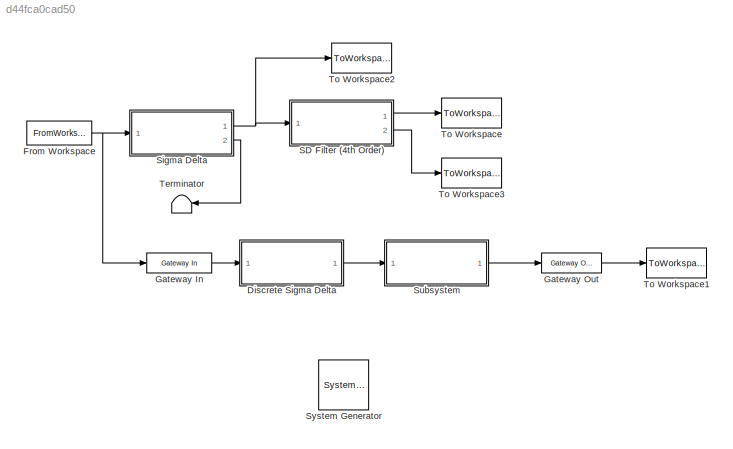
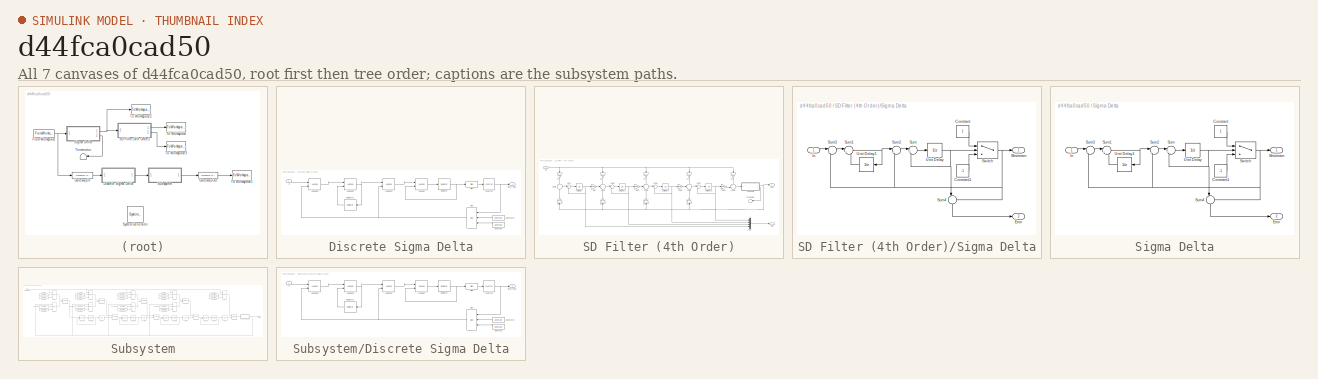
[diagram: thumbnail index - all 7 canvases of the model, root first then tree order]
MODEL slx_d44fca0cad50
KIND model
CONFIG AbsTol = auto
CONFIG EnableMultiTasking = off
CONFIG FixedStep = auto
CONFIG MaxStep = auto
CONFIG MinStep = auto
CONFIG RelTol = 1e-3
CONFIG SampleTimeConstraint = Unconstrained
CONFIG Solver = VariableStepAuto
CONFIG SolverName = VariableStepAuto
CONFIG StartTime = 0.0
CONFIG StopTime = t_stop
BLOCK [Reference]  System Generator  REF=xbsIndex_r4/ System Generator
  AttributesFormatString = System\nGenerator
  Ports = []
  SourceBlock = xbsIndex_r4/ System Generator
  SourceType = Xilinx System Generator Block
  Tag = genX
  UserDataPersistent = on
BLOCK [SubSystem] Discrete Sigma Delta
  Ports = [1, 1]
  RequestExecContextInheritance = off
  Variant = off
BLOCK [Reference] Discrete Sigma Delta/AddSub  REF=xbsIndex_r4/AddSub
  Ports = [2, 1]
  SourceBlock = xbsIndex_r4/AddSub
  SourceType = Xilinx Adder/Subtracter Block
BLOCK [Reference] Discrete Sigma Delta/AddSub1  REF=xbsIndex_r4/AddSub
  Ports = [2, 1]
  SourceBlock = xbsIndex_r4/AddSub
  SourceType = Xilinx Adder/Subtracter Block
BLOCK [Reference] Discrete Sigma Delta/AddSub2  REF=xbsIndex_r4/AddSub
  Ports = [2, 1]
  SourceBlock = xbsIndex_r4/AddSub
  SourceType = Xilinx Adder/Subtracter Block
BLOCK [Reference] Discrete Sigma Delta/AddSub3  REF=xbsIndex_r4/AddSub
  Ports = [2, 1]
  SourceBlock = xbsIndex_r4/AddSub
  SourceType = Xilinx Adder/Subtracter Block
BLOCK [Reference] Discrete Sigma Delta/Constant  REF=xbsIndex_r4/Constant
  Ports = [0, 1]
  SourceBlock = xbsIndex_r4/Constant
  SourceType = Xilinx Constant Block Block
BLOCK [Reference] Discrete Sigma Delta/Constant1  REF=xbsIndex_r4/Constant
  Ports = [0, 1]
  SourceBlock = xbsIndex_r4/Constant
  SourceType = Xilinx Constant Block Block
BLOCK [Inport] Discrete Sigma Delta/In
  IconDisplay = Port number
BLOCK [Reference] Discrete Sigma Delta/Inverter  REF=xbsIndex_r4/Inverter
  Ports = [1, 1]
  SourceBlock = xbsIndex_r4/Inverter
  SourceType = Xilinx Inverter Block
BLOCK [Reference] Discrete Sigma Delta/Mux  REF=xbsIndex_r4/Mux
  Ports = [3, 1]
  SourceBlock = xbsIndex_r4/Mux
  SourceType = Xilinx Bus Multiplexer Block
BLOCK [Reference] Discrete Sigma Delta/Register  REF=xbsIndex_r4/Register
  Ports = [1, 1]
  SourceBlock = xbsIndex_r4/Register
  SourceType = Xilinx Register Block
BLOCK [Reference] Discrete Sigma Delta/Register1  REF=xbsIndex_r4/Register
  Ports = [1, 1]
  SourceBlock = xbsIndex_r4/Register
  SourceType = Xilinx Register Block
BLOCK [Reference] Discrete Sigma Delta/Slice  REF=xbsIndex_r4/Slice
  Ports = [1, 1]
  SourceBlock = xbsIndex_r4/Slice
  SourceType = Xilinx Bit Slice Extractor Block
BLOCK [Outport] Discrete Sigma Delta/bitstream
  IconDisplay = Port number
BLOCK [FromWorkspace] From Workspace
  OutDataTypeStr = double
  SampleTime = ts
  VariableName = [t;in]'
  ZeroCross = on
BLOCK [Reference] Gateway In  REF=xbsIndex_r4/Gateway In
  Ports = [1, 1]
  SourceBlock = xbsIndex_r4/Gateway In
  SourceType = Xilinx Gateway In Block
BLOCK [Reference] Gateway Out  REF=xbsIndex_r4/Gateway Out
  Ports = [1, 1]
  SourceBlock = xbsIndex_r4/Gateway Out
  SourceType = Xilinx Gateway Out Block
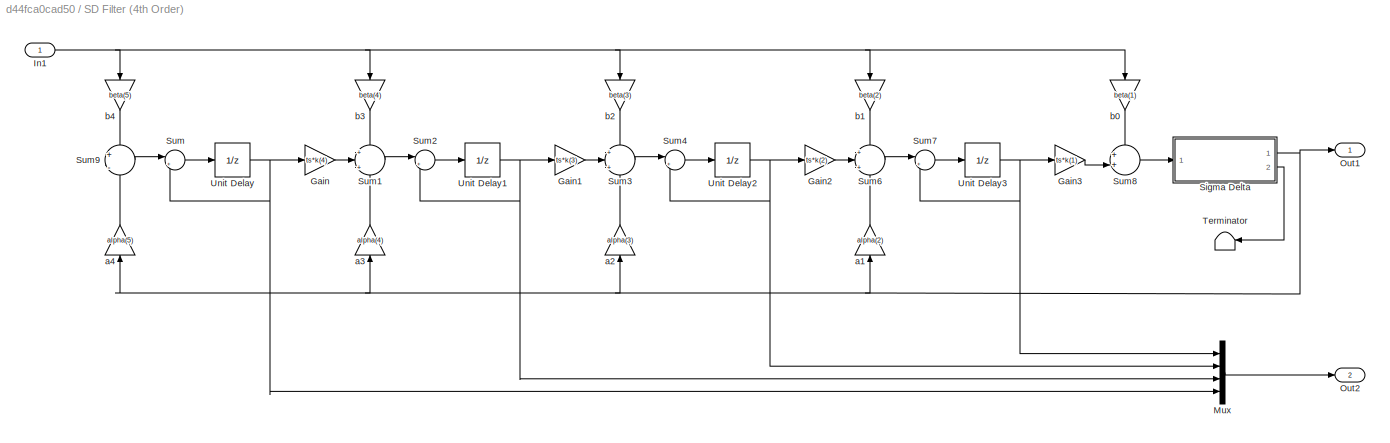
BLOCK [SubSystem] SD Filter (4th Order)
  Ports = [1, 2]
  RequestExecContextInheritance = off
  Variant = off
BLOCK [Gain] SD Filter (4th Order)/Gain
  Gain = ts*k(4)
  OutDataTypeStr = Inherit: Inherit via internal rule
  ParamDataTypeStr = Inherit: Inherit via internal rule
  RndMeth = Round
  SaturateOnIntegerOverflow = off
BLOCK [Gain] SD Filter (4th Order)/Gain1
  Gain = ts*k(3)
  OutDataTypeStr = Inherit: Inherit via internal rule
  ParamDataTypeStr = Inherit: Inherit via internal rule
  RndMeth = Round
  SaturateOnIntegerOverflow = off
BLOCK [Gain] SD Filter (4th Order)/Gain2
  Gain = ts*k(2)
  OutDataTypeStr = Inherit: Inherit via internal rule
  ParamDataTypeStr = Inherit: Inherit via internal rule
  RndMeth = Round
  SaturateOnIntegerOverflow = off
BLOCK [Gain] SD Filter (4th Order)/Gain3
  Gain = ts*k(1)
  OutDataTypeStr = Inherit: Inherit via internal rule
  ParamDataTypeStr = Inherit: Inherit via internal rule
  RndMeth = Round
  SaturateOnIntegerOverflow = off
BLOCK [Inport] SD Filter (4th Order)/In1
  IconDisplay = Port number
BLOCK [Mux] SD Filter (4th Order)/Mux
  DisplayOption = bar
  Ports = [4, 1]
BLOCK [Outport] SD Filter (4th Order)/Out1
  IconDisplay = Port number
BLOCK [Outport] SD Filter (4th Order)/Out2
  IconDisplay = Port number
  Port = 2
BLOCK [SubSystem] SD Filter (4th Order)/Sigma Delta
  Ports = [1, 2]
  RequestExecContextInheritance = off
  Variant = off
BLOCK [Outport] SD Filter (4th Order)/Sigma Delta/Bitstream
  IconDisplay = Port number
BLOCK [Constant] SD Filter (4th Order)/Sigma Delta/Constant
BLOCK [Constant] SD Filter (4th Order)/Sigma Delta/Constant1
  Value = -1
BLOCK [Outport] SD Filter (4th Order)/Sigma Delta/Error
  IconDisplay = Port number
  Port = 2
BLOCK [Inport] SD Filter (4th Order)/Sigma Delta/In
  IconDisplay = Port number
BLOCK [Sum] SD Filter (4th Order)/Sigma Delta/Sum
  IconShape = round
  InputSameDT = off
  Inputs = |++
  OutDataTypeStr = Inherit: Inherit via internal rule
  Ports = [2, 1]
  SaturateOnIntegerOverflow = off
BLOCK [Sum] SD Filter (4th Order)/Sigma Delta/Sum1
  IconShape = round
  InputSameDT = off
  Inputs = |++
  OutDataTypeStr = Inherit: Inherit via internal rule
  Ports = [2, 1]
  SaturateOnIntegerOverflow = off
BLOCK [Sum] SD Filter (4th Order)/Sigma Delta/Sum2
  IconShape = round
  InputSameDT = off
  Inputs = |+-
  OutDataTypeStr = Inherit: Inherit via internal rule
  Ports = [2, 1]
  SaturateOnIntegerOverflow = off
BLOCK [Sum] SD Filter (4th Order)/Sigma Delta/Sum3
  IconShape = round
  InputSameDT = off
  Inputs = |+-
  OutDataTypeStr = Inherit: Inherit via internal rule
  Ports = [2, 1]
  SaturateOnIntegerOverflow = off
BLOCK [Sum] SD Filter (4th Order)/Sigma Delta/Sum4
  IconShape = round
  InputSameDT = off
  Inputs = |-+
  OutDataTypeStr = Inherit: Inherit via internal rule
  Ports = [2, 1]
  SaturateOnIntegerOverflow = off
BLOCK [Switch] SD Filter (4th Order)/Sigma Delta/Switch
  InputSameDT = off
  SaturateOnIntegerOverflow = off
BLOCK [UnitDelay] SD Filter (4th Order)/Sigma Delta/Unit Delay
  InputProcessing = Elements as channels (sample based)
  SampleTime = ts
BLOCK [UnitDelay] SD Filter (4th Order)/Sigma Delta/Unit Delay1
  InputProcessing = Elements as channels (sample based)
  SampleTime = ts
BLOCK [Sum] SD Filter (4th Order)/Sum
  IconShape = round
  InputSameDT = off
  Inputs = |++
  OutDataTypeStr = Inherit: Inherit via internal rule
  Ports = [2, 1]
  SaturateOnIntegerOverflow = off
BLOCK [Sum] SD Filter (4th Order)/Sum1
  IconShape = round
  InputSameDT = off
  Inputs = +|+|-
  OutDataTypeStr = Inherit: Inherit via internal rule
  Ports = [3, 1]
  SaturateOnIntegerOverflow = off
BLOCK [Sum] SD Filter (4th Order)/Sum2
  IconShape = round
  InputSameDT = off
  Inputs = |++
  OutDataTypeStr = Inherit: Inherit via internal rule
  Ports = [2, 1]
  SaturateOnIntegerOverflow = off
BLOCK [Sum] SD Filter (4th Order)/Sum3
  IconShape = round
  InputSameDT = off
  Inputs = +|+|-
  OutDataTypeStr = Inherit: Inherit via internal rule
  Ports = [3, 1]
  SaturateOnIntegerOverflow = off
BLOCK [Sum] SD Filter (4th Order)/Sum4
  IconShape = round
  InputSameDT = off
  Inputs = |++
  OutDataTypeStr = Inherit: Inherit via internal rule
  Ports = [2, 1]
  SaturateOnIntegerOverflow = off
BLOCK [Sum] SD Filter (4th Order)/Sum6
  IconShape = round
  InputSameDT = off
  Inputs = +|+|-
  OutDataTypeStr = Inherit: Inherit via internal rule
  Ports = [3, 1]
  SaturateOnIntegerOverflow = off
BLOCK [Sum] SD Filter (4th Order)/Sum7
  IconShape = round
  InputSameDT = off
  Inputs = |++
  OutDataTypeStr = Inherit: Inherit via internal rule
  Ports = [2, 1]
  SaturateOnIntegerOverflow = off
BLOCK [Sum] SD Filter (4th Order)/Sum8
  IconShape = round
  InputSameDT = off
  Inputs = ++|
  OutDataTypeStr = Inherit: Inherit via internal rule
  Ports = [2, 1]
  SaturateOnIntegerOverflow = off
BLOCK [Sum] SD Filter (4th Order)/Sum9
  IconShape = round
  InputSameDT = off
  Inputs = +|-
  OutDataTypeStr = Inherit: Inherit via internal rule
  Ports = [2, 1]
  SaturateOnIntegerOverflow = off
BLOCK [Terminator] SD Filter (4th Order)/Terminator
BLOCK [UnitDelay] SD Filter (4th Order)/Unit Delay
  InputProcessing = Elements as channels (sample based)
  SampleTime = -1
BLOCK [UnitDelay] SD Filter (4th Order)/Unit Delay1
  InputProcessing = Elements as channels (sample based)
  SampleTime = -1
BLOCK [UnitDelay] SD Filter (4th Order)/Unit Delay2
  InputProcessing = Elements as channels (sample based)
  SampleTime = -1
BLOCK [UnitDelay] SD Filter (4th Order)/Unit Delay3
  InputProcessing = Elements as channels (sample based)
  SampleTime = -1
BLOCK [Gain] SD Filter (4th Order)/a1
  Gain = alpha(2)
  OutDataTypeStr = Inherit: Inherit via internal rule
  ParamDataTypeStr = Inherit: Inherit via internal rule
  SaturateOnIntegerOverflow = off
BLOCK [Gain] SD Filter (4th Order)/a2
  Gain = alpha(3)
  OutDataTypeStr = Inherit: Inherit via internal rule
  ParamDataTypeStr = Inherit: Inherit via internal rule
  SaturateOnIntegerOverflow = off
BLOCK [Gain] SD Filter (4th Order)/a3
  Gain = alpha(4)
  OutDataTypeStr = Inherit: Inherit via internal rule
  ParamDataTypeStr = Inherit: Inherit via internal rule
  SaturateOnIntegerOverflow = off
BLOCK [Gain] SD Filter (4th Order)/a4
  Gain = alpha(5)
  OutDataTypeStr = Inherit: Inherit via internal rule
  ParamDataTypeStr = Inherit: Inherit via internal rule
  SaturateOnIntegerOverflow = off
BLOCK [Gain] SD Filter (4th Order)/b0
  Gain = beta(1)
  OutDataTypeStr = Inherit: Inherit via internal rule
  ParamDataTypeStr = Inherit: Inherit via internal rule
  SaturateOnIntegerOverflow = off
BLOCK [Gain] SD Filter (4th Order)/b1
  Gain = beta(2)
  OutDataTypeStr = Inherit: Inherit via internal rule
  ParamDataTypeStr = Inherit: Inherit via internal rule
  SaturateOnIntegerOverflow = off
BLOCK [Gain] SD Filter (4th Order)/b2
  Gain = beta(3)
  OutDataTypeStr = Inherit: Inherit via internal rule
  ParamDataTypeStr = Inherit: Inherit via internal rule
  SaturateOnIntegerOverflow = off
BLOCK [Gain] SD Filter (4th Order)/b3
  Gain = beta(4)
  OutDataTypeStr = Inherit: Inherit via internal rule
  ParamDataTypeStr = Inherit: Inherit via internal rule
  SaturateOnIntegerOverflow = off
BLOCK [Gain] SD Filter (4th Order)/b4
  Gain = beta(5)
  OutDataTypeStr = Inherit: Inherit via internal rule
  ParamDataTypeStr = Inherit: Inherit via internal rule
  SaturateOnIntegerOverflow = off
BLOCK [SubSystem] Sigma Delta
  Ports = [1, 2]
  RequestExecContextInheritance = off
  Variant = off
BLOCK [Outport] Sigma Delta/Bitstream
  IconDisplay = Port number
BLOCK [Constant] Sigma Delta/Constant
BLOCK [Constant] Sigma Delta/Constant1
  Value = -1
BLOCK [Outport] Sigma Delta/Error
  IconDisplay = Port number
  Port = 2
BLOCK [Inport] Sigma Delta/In
  IconDisplay = Port number
BLOCK [Sum] Sigma Delta/Sum
  IconShape = round
  InputSameDT = off
  Inputs = |++
  OutDataTypeStr = Inherit: Inherit via internal rule
  Ports = [2, 1]
  SaturateOnIntegerOverflow = off
BLOCK [Sum] Sigma Delta/Sum1
  IconShape = round
  InputSameDT = off
  Inputs = |++
  OutDataTypeStr = Inherit: Inherit via internal rule
  Ports = [2, 1]
  SaturateOnIntegerOverflow = off
BLOCK [Sum] Sigma Delta/Sum2
  IconShape = round
  InputSameDT = off
  Inputs = |+-
  OutDataTypeStr = Inherit: Inherit via internal rule
  Ports = [2, 1]
  SaturateOnIntegerOverflow = off
BLOCK [Sum] Sigma Delta/Sum3
  IconShape = round
  InputSameDT = off
  Inputs = |+-
  OutDataTypeStr = Inherit: Inherit via internal rule
  Ports = [2, 1]
  SaturateOnIntegerOverflow = off
BLOCK [Sum] Sigma Delta/Sum4
  IconShape = round
  InputSameDT = off
  Inputs = |-+
  OutDataTypeStr = Inherit: Inherit via internal rule
  Ports = [2, 1]
  SaturateOnIntegerOverflow = off
BLOCK [Switch] Sigma Delta/Switch
  InputSameDT = off
  SaturateOnIntegerOverflow = off
BLOCK [UnitDelay] Sigma Delta/Unit Delay
  InputProcessing = Elements as channels (sample based)
  SampleTime = ts
BLOCK [UnitDelay] Sigma Delta/Unit Delay1
  InputProcessing = Elements as channels (sample based)
  SampleTime = ts
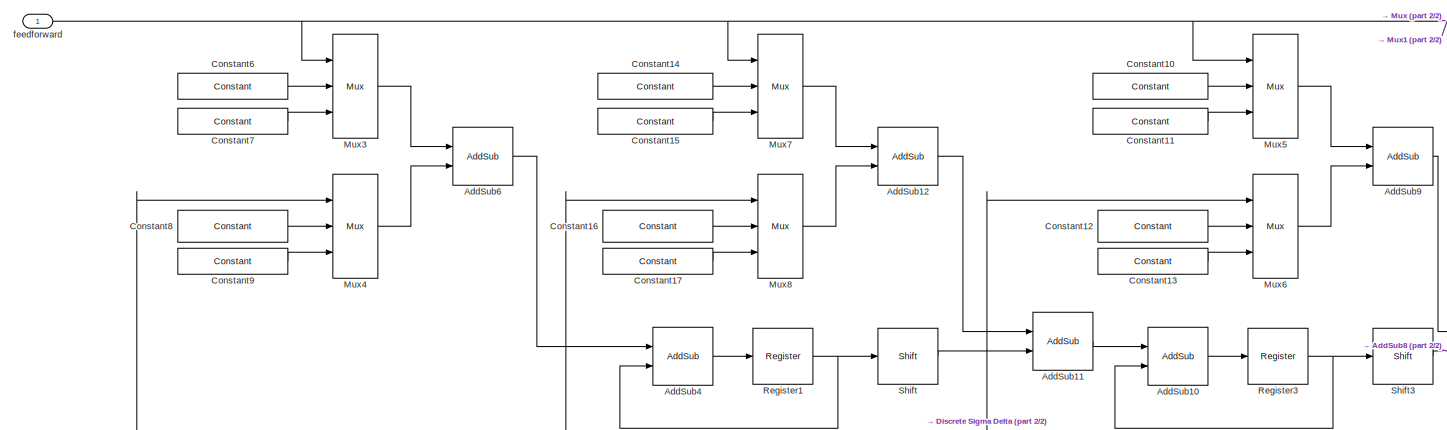
[diagram: Subsystem - part 1/2, middle left region]
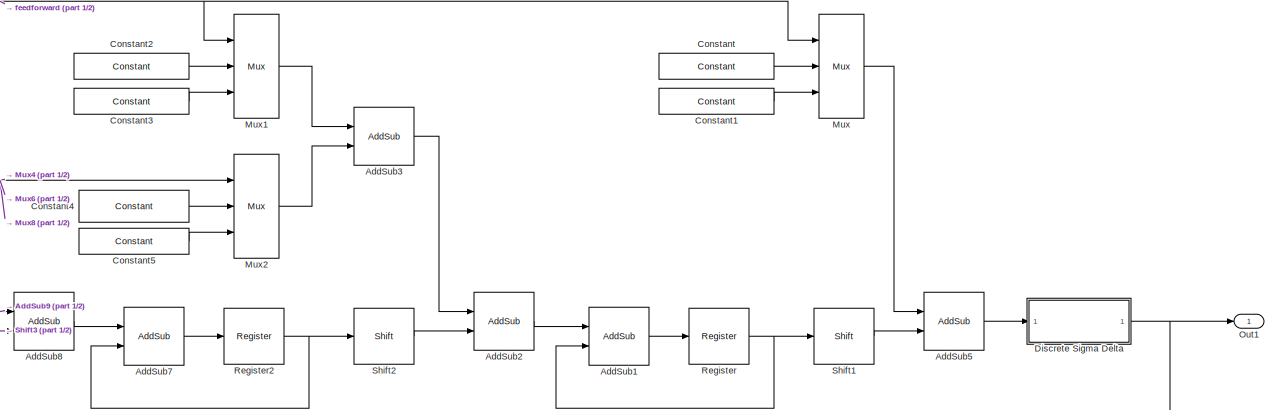
[diagram: Subsystem - part 2/2, middle right region]
BLOCK [SubSystem] Subsystem
  Ports = [1, 1]
  RequestExecContextInheritance = off
  Variant = off
BLOCK [Reference] Subsystem/AddSub1  REF=xbsIndex_r4/AddSub
  Ports = [2, 1]
  SourceBlock = xbsIndex_r4/AddSub
  SourceType = Xilinx Adder/Subtracter Block
BLOCK [Reference] Subsystem/AddSub10  REF=xbsIndex_r4/AddSub
  Ports = [2, 1]
  SourceBlock = xbsIndex_r4/AddSub
  SourceType = Xilinx Adder/Subtracter Block
BLOCK [Reference] Subsystem/AddSub11  REF=xbsIndex_r4/AddSub
  Ports = [2, 1]
  SourceBlock = xbsIndex_r4/AddSub
  SourceType = Xilinx Adder/Subtracter Block
BLOCK [Reference] Subsystem/AddSub12  REF=xbsIndex_r4/AddSub
  Ports = [2, 1]
  SourceBlock = xbsIndex_r4/AddSub
  SourceType = Xilinx Adder/Subtracter Block
BLOCK [Reference] Subsystem/AddSub2  REF=xbsIndex_r4/AddSub
  Ports = [2, 1]
  SourceBlock = xbsIndex_r4/AddSub
  SourceType = Xilinx Adder/Subtracter Block
BLOCK [Reference] Subsystem/AddSub3  REF=xbsIndex_r4/AddSub
  Ports = [2, 1]
  SourceBlock = xbsIndex_r4/AddSub
  SourceType = Xilinx Adder/Subtracter Block
BLOCK [Reference] Subsystem/AddSub4  REF=xbsIndex_r4/AddSub
  Ports = [2, 1]
  SourceBlock = xbsIndex_r4/AddSub
  SourceType = Xilinx Adder/Subtracter Block
BLOCK [Reference] Subsystem/AddSub5  REF=xbsIndex_r4/AddSub
  Ports = [2, 1]
  SourceBlock = xbsIndex_r4/AddSub
  SourceType = Xilinx Adder/Subtracter Block
BLOCK [Reference] Subsystem/AddSub6  REF=xbsIndex_r4/AddSub
  Ports = [2, 1]
  SourceBlock = xbsIndex_r4/AddSub
  SourceType = Xilinx Adder/Subtracter Block
BLOCK [Reference] Subsystem/AddSub7  REF=xbsIndex_r4/AddSub
  Ports = [2, 1]
  SourceBlock = xbsIndex_r4/AddSub
  SourceType = Xilinx Adder/Subtracter Block
BLOCK [Reference] Subsystem/AddSub8  REF=xbsIndex_r4/AddSub
  Ports = [2, 1]
  SourceBlock = xbsIndex_r4/AddSub
  SourceType = Xilinx Adder/Subtracter Block
BLOCK [Reference] Subsystem/AddSub9  REF=xbsIndex_r4/AddSub
  Ports = [2, 1]
  SourceBlock = xbsIndex_r4/AddSub
  SourceType = Xilinx Adder/Subtracter Block
BLOCK [Reference] Subsystem/Constant  REF=xbsIndex_r4/Constant
  Ports = [0, 1]
  SourceBlock = xbsIndex_r4/Constant
  SourceType = Xilinx Constant Block Block
BLOCK [Reference] Subsystem/Constant1  REF=xbsIndex_r4/Constant
  Ports = [0, 1]
  SourceBlock = xbsIndex_r4/Constant
  SourceType = Xilinx Constant Block Block
BLOCK [Reference] Subsystem/Constant10  REF=xbsIndex_r4/Constant
  Ports = [0, 1]
  SourceBlock = xbsIndex_r4/Constant
  SourceType = Xilinx Constant Block Block
BLOCK [Reference] Subsystem/Constant11  REF=xbsIndex_r4/Constant
  Ports = [0, 1]
  SourceBlock = xbsIndex_r4/Constant
  SourceType = Xilinx Constant Block Block
BLOCK [Reference] Subsystem/Constant12  REF=xbsIndex_r4/Constant
  Ports = [0, 1]
  SourceBlock = xbsIndex_r4/Constant
  SourceType = Xilinx Constant Block Block
BLOCK [Reference] Subsystem/Constant13  REF=xbsIndex_r4/Constant
  Ports = [0, 1]
  SourceBlock = xbsIndex_r4/Constant
  SourceType = Xilinx Constant Block Block
BLOCK [Reference] Subsystem/Constant14  REF=xbsIndex_r4/Constant
  Ports = [0, 1]
  SourceBlock = xbsIndex_r4/Constant
  SourceType = Xilinx Constant Block Block
BLOCK [Reference] Subsystem/Constant15  REF=xbsIndex_r4/Constant
  Ports = [0, 1]
  SourceBlock = xbsIndex_r4/Constant
  SourceType = Xilinx Constant Block Block
BLOCK [Reference] Subsystem/Constant16  REF=xbsIndex_r4/Constant
  Ports = [0, 1]
  SourceBlock = xbsIndex_r4/Constant
  SourceType = Xilinx Constant Block Block
BLOCK [Reference] Subsystem/Constant17  REF=xbsIndex_r4/Constant
  Ports = [0, 1]
  SourceBlock = xbsIndex_r4/Constant
  SourceType = Xilinx Constant Block Block
BLOCK [Reference] Subsystem/Constant2  REF=xbsIndex_r4/Constant
  Ports = [0, 1]
  SourceBlock = xbsIndex_r4/Constant
  SourceType = Xilinx Constant Block Block
BLOCK [Reference] Subsystem/Constant3  REF=xbsIndex_r4/Constant
  Ports = [0, 1]
  SourceBlock = xbsIndex_r4/Constant
  SourceType = Xilinx Constant Block Block
BLOCK [Reference] Subsystem/Constant4  REF=xbsIndex_r4/Constant
  Ports = [0, 1]
  SourceBlock = xbsIndex_r4/Constant
  SourceType = Xilinx Constant Block Block
BLOCK [Reference] Subsystem/Constant5  REF=xbsIndex_r4/Constant
  Ports = [0, 1]
  SourceBlock = xbsIndex_r4/Constant
  SourceType = Xilinx Constant Block Block
BLOCK [Reference] Subsystem/Constant6  REF=xbsIndex_r4/Constant
  Ports = [0, 1]
  SourceBlock = xbsIndex_r4/Constant
  SourceType = Xilinx Constant Block Block
BLOCK [Reference] Subsystem/Constant7  REF=xbsIndex_r4/Constant
  Ports = [0, 1]
  SourceBlock = xbsIndex_r4/Constant
  SourceType = Xilinx Constant Block Block
BLOCK [Reference] Subsystem/Constant8  REF=xbsIndex_r4/Constant
  Ports = [0, 1]
  SourceBlock = xbsIndex_r4/Constant
  SourceType = Xilinx Constant Block Block
BLOCK [Reference] Subsystem/Constant9  REF=xbsIndex_r4/Constant
  Ports = [0, 1]
  SourceBlock = xbsIndex_r4/Constant
  SourceType = Xilinx Constant Block Block
BLOCK [SubSystem] Subsystem/Discrete Sigma Delta
  Ports = [1, 1]
  RequestExecContextInheritance = off
  Variant = off
BLOCK [Reference] Subsystem/Discrete Sigma Delta/AddSub  REF=xbsIndex_r4/AddSub
  Ports = [2, 1]
  SourceBlock = xbsIndex_r4/AddSub
  SourceType = Xilinx Adder/Subtracter Block
BLOCK [Reference] Subsystem/Discrete Sigma Delta/AddSub1  REF=xbsIndex_r4/AddSub
  Ports = [2, 1]
  SourceBlock = xbsIndex_r4/AddSub
  SourceType = Xilinx Adder/Subtracter Block
BLOCK [Reference] Subsystem/Discrete Sigma Delta/AddSub2  REF=xbsIndex_r4/AddSub
  Ports = [2, 1]
  SourceBlock = xbsIndex_r4/AddSub
  SourceType = Xilinx Adder/Subtracter Block
BLOCK [Reference] Subsystem/Discrete Sigma Delta/AddSub3  REF=xbsIndex_r4/AddSub
  Ports = [2, 1]
  SourceBlock = xbsIndex_r4/AddSub
  SourceType = Xilinx Adder/Subtracter Block
BLOCK [Reference] Subsystem/Discrete Sigma Delta/Constant  REF=xbsIndex_r4/Constant
  Ports = [0, 1]
  SourceBlock = xbsIndex_r4/Constant
  SourceType = Xilinx Constant Block Block
BLOCK [Reference] Subsystem/Discrete Sigma Delta/Constant1  REF=xbsIndex_r4/Constant
  Ports = [0, 1]
  SourceBlock = xbsIndex_r4/Constant
  SourceType = Xilinx Constant Block Block
BLOCK [Inport] Subsystem/Discrete Sigma Delta/In
  IconDisplay = Port number
BLOCK [Reference] Subsystem/Discrete Sigma Delta/Inverter  REF=xbsIndex_r4/Inverter
  Ports = [1, 1]
  SourceBlock = xbsIndex_r4/Inverter
  SourceType = Xilinx Inverter Block
BLOCK [Reference] Subsystem/Discrete Sigma Delta/Mux  REF=xbsIndex_r4/Mux
  Ports = [3, 1]
  SourceBlock = xbsIndex_r4/Mux
  SourceType = Xilinx Bus Multiplexer Block
BLOCK [Reference] Subsystem/Discrete Sigma Delta/Register  REF=xbsIndex_r4/Register
  Ports = [1, 1]
  SourceBlock = xbsIndex_r4/Register
  SourceType = Xilinx Register Block
BLOCK [Reference] Subsystem/Discrete Sigma Delta/Register1  REF=xbsIndex_r4/Register
  Ports = [1, 1]
  SourceBlock = xbsIndex_r4/Register
  SourceType = Xilinx Register Block
BLOCK [Reference] Subsystem/Discrete Sigma Delta/Slice  REF=xbsIndex_r4/Slice
  Ports = [1, 1]
  SourceBlock = xbsIndex_r4/Slice
  SourceType = Xilinx Bit Slice Extractor Block
BLOCK [Outport] Subsystem/Discrete Sigma Delta/bitstream
  IconDisplay = Port number
BLOCK [Reference] Subsystem/Mux  REF=xbsIndex_r4/Mux
  Ports = [3, 1]
  SourceBlock = xbsIndex_r4/Mux
  SourceType = Xilinx Bus Multiplexer Block
BLOCK [Reference] Subsystem/Mux1  REF=xbsIndex_r4/Mux
  Ports = [3, 1]
  SourceBlock = xbsIndex_r4/Mux
  SourceType = Xilinx Bus Multiplexer Block
BLOCK [Reference] Subsystem/Mux2  REF=xbsIndex_r4/Mux
  Ports = [3, 1]
  SourceBlock = xbsIndex_r4/Mux
  SourceType = Xilinx Bus Multiplexer Block
BLOCK [Reference] Subsystem/Mux3  REF=xbsIndex_r4/Mux
  Ports = [3, 1]
  SourceBlock = xbsIndex_r4/Mux
  SourceType = Xilinx Bus Multiplexer Block
BLOCK [Reference] Subsystem/Mux4  REF=xbsIndex_r4/Mux
  Ports = [3, 1]
  SourceBlock = xbsIndex_r4/Mux
  SourceType = Xilinx Bus Multiplexer Block
BLOCK [Reference] Subsystem/Mux5  REF=xbsIndex_r4/Mux
  Ports = [3, 1]
  SourceBlock = xbsIndex_r4/Mux
  SourceType = Xilinx Bus Multiplexer Block
BLOCK [Reference] Subsystem/Mux6  REF=xbsIndex_r4/Mux
  Ports = [3, 1]
  SourceBlock = xbsIndex_r4/Mux
  SourceType = Xilinx Bus Multiplexer Block
BLOCK [Reference] Subsystem/Mux7  REF=xbsIndex_r4/Mux
  Ports = [3, 1]
  SourceBlock = xbsIndex_r4/Mux
  SourceType = Xilinx Bus Multiplexer Block
BLOCK [Reference] Subsystem/Mux8  REF=xbsIndex_r4/Mux
  Ports = [3, 1]
  SourceBlock = xbsIndex_r4/Mux
  SourceType = Xilinx Bus Multiplexer Block
BLOCK [Outport] Subsystem/Out1
  IconDisplay = Port number
BLOCK [Reference] Subsystem/Register  REF=xbsIndex_r4/Register
  Ports = [1, 1]
  SourceBlock = xbsIndex_r4/Register
  SourceType = Xilinx Register Block
BLOCK [Reference] Subsystem/Register1  REF=xbsIndex_r4/Register
  Ports = [1, 1]
  SourceBlock = xbsIndex_r4/Register
  SourceType = Xilinx Register Block
BLOCK [Reference] Subsystem/Register2  REF=xbsIndex_r4/Register
  Ports = [1, 1]
  SourceBlock = xbsIndex_r4/Register
  SourceType = Xilinx Register Block
BLOCK [Reference] Subsystem/Register3  REF=xbsIndex_r4/Register
  Ports = [1, 1]
  SourceBlock = xbsIndex_r4/Register
  SourceType = Xilinx Register Block
BLOCK [Reference] Subsystem/Shift  REF=xbsIndex_r4/Shift
  Ports = [1, 1]
  SourceBlock = xbsIndex_r4/Shift
  SourceType = Xilinx Binary Shift Operator Block
BLOCK [Reference] Subsystem/Shift1  REF=xbsIndex_r4/Shift
  Ports = [1, 1]
  SourceBlock = xbsIndex_r4/Shift
  SourceType = Xilinx Binary Shift Operator Block
BLOCK [Reference] Subsystem/Shift2  REF=xbsIndex_r4/Shift
  Ports = [1, 1]
  SourceBlock = xbsIndex_r4/Shift
  SourceType = Xilinx Binary Shift Operator Block
BLOCK [Reference] Subsystem/Shift3  REF=xbsIndex_r4/Shift
  Ports = [1, 1]
  SourceBlock = xbsIndex_r4/Shift
  SourceType = Xilinx Binary Shift Operator Block
BLOCK [Inport] Subsystem/feedforward
  IconDisplay = Port number
BLOCK [Terminator] Terminator
BLOCK [ToWorkspace] To Workspace
  FixptAsFi = on
  MaxDataPoints = inf
  Ports = [1]
  SampleTime = -1
  Save2DSignal = 3-D array (concatenate along third dimension)
  VariableName = filter_output
BLOCK [ToWorkspace] To Workspace1
  FixptAsFi = on
  MaxDataPoints = inf
  Ports = [1]
  SampleTime = -1
  Save2DSignal = 3-D array (concatenate along third dimension)
  VariableName = filter_output1
BLOCK [ToWorkspace] To Workspace2
  FixptAsFi = on
  MaxDataPoints = inf
  Ports = [1]
  SampleTime = -1
  Save2DSignal = 3-D array (concatenate along third dimension)
  VariableName = sd1_output
BLOCK [ToWorkspace] To Workspace3
  FixptAsFi = on
  MaxDataPoints = inf
  Ports = [1]
  SampleTime = -1
  Save2DSignal = 3-D array (concatenate along third dimension)
  VariableName = state
LINE Discrete Sigma Delta/AddSub1:1 -> Discrete Sigma Delta/AddSub:1
NET Discrete Sigma Delta/AddSub2:1 -> Discrete Sigma Delta/AddSub1:1, Discrete Sigma Delta/Register1:1
LINE Discrete Sigma Delta/AddSub3:1 -> Discrete Sigma Delta/AddSub2:1
LINE Discrete Sigma Delta/AddSub:1 -> Discrete Sigma Delta/Register:1
LINE Discrete Sigma Delta/Constant1:1 -> Discrete Sigma Delta/Mux:2
LINE Discrete Sigma Delta/Constant:1 -> Discrete Sigma Delta/Mux:3
LINE Discrete Sigma Delta/In:1 -> Discrete Sigma Delta/AddSub3:1
NET Discrete Sigma Delta/Inverter:1 -> Discrete Sigma Delta/Mux:1, Discrete Sigma Delta/bitstream:1
NET Discrete Sigma Delta/Mux:1 -> Discrete Sigma Delta/AddSub1:2, Discrete Sigma Delta/AddSub3:2
LINE Discrete Sigma Delta/Register1:1 -> Discrete Sigma Delta/AddSub2:2
NET Discrete Sigma Delta/Register:1 -> Discrete Sigma Delta/AddSub:2, Discrete Sigma Delta/Slice:1
LINE Discrete Sigma Delta/Slice:1 -> Discrete Sigma Delta/Inverter:1
LINE Discrete Sigma Delta:1 -> Subsystem:1
NET From Workspace:1 -> Gateway In:1, Sigma Delta:1
LINE Gateway In:1 -> Discrete Sigma Delta:1
LINE Gateway Out:1 -> To Workspace1:1
LINE SD Filter (4th Order)/Gain1:1 -> SD Filter (4th Order)/Sum3:2
LINE SD Filter (4th Order)/Gain2:1 -> SD Filter (4th Order)/Sum6:2
LINE SD Filter (4th Order)/Gain3:1 -> SD Filter (4th Order)/Sum8:2
LINE SD Filter (4th Order)/Gain:1 -> SD Filter (4th Order)/Sum1:2
NET SD Filter (4th Order)/In1:1 -> SD Filter (4th Order)/b0:1, SD Filter (4th Order)/b1:1, SD Filter (4th Order)/b2:1, SD Filter (4th Order)/b3:1, SD Filter (4th Order)/b4:1
LINE SD Filter (4th Order)/Mux:1 -> SD Filter (4th Order)/Out2:1
LINE SD Filter (4th Order)/Sigma Delta/Constant1:1 -> SD Filter (4th Order)/Sigma Delta/Switch:3
LINE SD Filter (4th Order)/Sigma Delta/Constant:1 -> SD Filter (4th Order)/Sigma Delta/Switch:1
LINE SD Filter (4th Order)/Sigma Delta/In:1 -> SD Filter (4th Order)/Sigma Delta/Sum3:1
NET SD Filter (4th Order)/Sigma Delta/Sum1:1 -> SD Filter (4th Order)/Sigma Delta/Sum2:1, SD Filter (4th Order)/Sigma Delta/Unit Delay1:1
LINE SD Filter (4th Order)/Sigma Delta/Sum2:1 -> SD Filter (4th Order)/Sigma Delta/Sum:1
LINE SD Filter (4th Order)/Sigma Delta/Sum3:1 -> SD Filter (4th Order)/Sigma Delta/Sum1:1
LINE SD Filter (4th Order)/Sigma Delta/Sum4:1 -> SD Filter (4th Order)/Sigma Delta/Error:1
LINE SD Filter (4th Order)/Sigma Delta/Sum:1 -> SD Filter (4th Order)/Sigma Delta/Unit Delay:1
NET SD Filter (4th Order)/Sigma Delta/Switch:1 -> SD Filter (4th Order)/Sigma Delta/Bitstream:1, SD Filter (4th Order)/Sigma Delta/Sum2:2, SD Filter (4th Order)/Sigma Delta/Sum3:2, SD Filter (4th Order)/Sigma Delta/Sum4:2
LINE SD Filter (4th Order)/Sigma Delta/Unit Delay1:1 -> SD Filter (4th Order)/Sigma Delta/Sum1:2
NET SD Filter (4th Order)/Sigma Delta/Unit Delay:1 -> SD Filter (4th Order)/Sigma Delta/Sum4:1, SD Filter (4th Order)/Sigma Delta/Sum:2, SD Filter (4th Order)/Sigma Delta/Switch:2
NET SD Filter (4th Order)/Sigma Delta:1 -> SD Filter (4th Order)/Out1:1, SD Filter (4th Order)/a1:1, SD Filter (4th Order)/a2:1, SD Filter (4th Order)/a3:1, SD Filter (4th Order)/a4:1
LINE SD Filter (4th Order)/Sigma Delta:2 -> SD Filter (4th Order)/Terminator:1
LINE SD Filter (4th Order)/Sum1:1 -> SD Filter (4th Order)/Sum2:1
LINE SD Filter (4th Order)/Sum2:1 -> SD Filter (4th Order)/Unit Delay1:1
LINE SD Filter (4th Order)/Sum3:1 -> SD Filter (4th Order)/Sum4:1
LINE SD Filter (4th Order)/Sum4:1 -> SD Filter (4th Order)/Unit Delay2:1
LINE SD Filter (4th Order)/Sum6:1 -> SD Filter (4th Order)/Sum7:1
LINE SD Filter (4th Order)/Sum7:1 -> SD Filter (4th Order)/Unit Delay3:1
LINE SD Filter (4th Order)/Sum8:1 -> SD Filter (4th Order)/Sigma Delta:1
LINE SD Filter (4th Order)/Sum9:1 -> SD Filter (4th Order)/Sum:1
LINE SD Filter (4th Order)/Sum:1 -> SD Filter (4th Order)/Unit Delay:1
NET SD Filter (4th Order)/Unit Delay1:1 -> SD Filter (4th Order)/Gain1:1, SD Filter (4th Order)/Mux:3, SD Filter (4th Order)/Sum2:2
NET SD Filter (4th Order)/Unit Delay2:1 -> SD Filter (4th Order)/Gain2:1, SD Filter (4th Order)/Mux:2, SD Filter (4th Order)/Sum4:2
NET SD Filter (4th Order)/Unit Delay3:1 -> SD Filter (4th Order)/Gain3:1, SD Filter (4th Order)/Mux:1, SD Filter (4th Order)/Sum7:2
NET SD Filter (4th Order)/Unit Delay:1 -> SD Filter (4th Order)/Gain:1, SD Filter (4th Order)/Mux:4, SD Filter (4th Order)/Sum:2
LINE SD Filter (4th Order)/a1:1 -> SD Filter (4th Order)/Sum6:3
LINE SD Filter (4th Order)/a2:1 -> SD Filter (4th Order)/Sum3:3
LINE SD Filter (4th Order)/a3:1 -> SD Filter (4th Order)/Sum1:3
LINE SD Filter (4th Order)/a4:1 -> SD Filter (4th Order)/Sum9:2
LINE SD Filter (4th Order)/b0:1 -> SD Filter (4th Order)/Sum8:1
LINE SD Filter (4th Order)/b1:1 -> SD Filter (4th Order)/Sum6:1
LINE SD Filter (4th Order)/b2:1 -> SD Filter (4th Order)/Sum3:1
LINE SD Filter (4th Order)/b3:1 -> SD Filter (4th Order)/Sum1:1
LINE SD Filter (4th Order)/b4:1 -> SD Filter (4th Order)/Sum9:1
LINE SD Filter (4th Order):1 -> To Workspace:1
LINE SD Filter (4th Order):2 -> To Workspace3:1
LINE Sigma Delta/Constant1:1 -> Sigma Delta/Switch:3
LINE Sigma Delta/Constant:1 -> Sigma Delta/Switch:1
LINE Sigma Delta/In:1 -> Sigma Delta/Sum3:1
NET Sigma Delta/Sum1:1 -> Sigma Delta/Sum2:1, Sigma Delta/Unit Delay1:1
LINE Sigma Delta/Sum2:1 -> Sigma Delta/Sum:1
LINE Sigma Delta/Sum3:1 -> Sigma Delta/Sum1:1
LINE Sigma Delta/Sum4:1 -> Sigma Delta/Error:1
LINE Sigma Delta/Sum:1 -> Sigma Delta/Unit Delay:1
NET Sigma Delta/Switch:1 -> Sigma Delta/Bitstream:1, Sigma Delta/Sum2:2, Sigma Delta/Sum3:2, Sigma Delta/Sum4:2
LINE Sigma Delta/Unit Delay1:1 -> Sigma Delta/Sum1:2
NET Sigma Delta/Unit Delay:1 -> Sigma Delta/Sum4:1, Sigma Delta/Sum:2, Sigma Delta/Switch:2
NET Sigma Delta:1 -> SD Filter (4th Order):1, To Workspace2:1
LINE Sigma Delta:2 -> Terminator:1
LINE Subsystem/AddSub10:1 -> Subsystem/Register3:1
LINE Subsystem/AddSub11:1 -> Subsystem/AddSub10:1
LINE Subsystem/AddSub12:1 -> Subsystem/AddSub11:1
LINE Subsystem/AddSub1:1 -> Subsystem/Register:1
LINE Subsystem/AddSub2:1 -> Subsystem/AddSub1:1
LINE Subsystem/AddSub3:1 -> Subsystem/AddSub2:1
LINE Subsystem/AddSub4:1 -> Subsystem/Register1:1
LINE Subsystem/AddSub5:1 -> Subsystem/Discrete Sigma Delta:1
LINE Subsystem/AddSub6:1 -> Subsystem/AddSub4:1
LINE Subsystem/AddSub7:1 -> Subsystem/Register2:1
LINE Subsystem/AddSub8:1 -> Subsystem/AddSub7:1
LINE Subsystem/AddSub9:1 -> Subsystem/AddSub8:1
LINE Subsystem/Constant10:1 -> Subsystem/Mux5:2
LINE Subsystem/Constant11:1 -> Subsystem/Mux5:3
LINE Subsystem/Constant12:1 -> Subsystem/Mux6:2
LINE Subsystem/Constant13:1 -> Subsystem/Mux6:3
LINE Subsystem/Constant14:1 -> Subsystem/Mux7:2
LINE Subsystem/Constant15:1 -> Subsystem/Mux7:3
LINE Subsystem/Constant16:1 -> Subsystem/Mux8:2
LINE Subsystem/Constant17:1 -> Subsystem/Mux8:3
LINE Subsystem/Constant1:1 -> Subsystem/Mux:3
LINE Subsystem/Constant2:1 -> Subsystem/Mux1:2
LINE Subsystem/Constant3:1 -> Subsystem/Mux1:3
LINE Subsystem/Constant4:1 -> Subsystem/Mux2:2
LINE Subsystem/Constant5:1 -> Subsystem/Mux2:3
LINE Subsystem/Constant6:1 -> Subsystem/Mux3:2
LINE Subsystem/Constant7:1 -> Subsystem/Mux3:3
LINE Subsystem/Constant8:1 -> Subsystem/Mux4:2
LINE Subsystem/Constant9:1 -> Subsystem/Mux4:3
LINE Subsystem/Constant:1 -> Subsystem/Mux:2
LINE Subsystem/Discrete Sigma Delta/AddSub1:1 -> Subsystem/Discrete Sigma Delta/AddSub:1
NET Subsystem/Discrete Sigma Delta/AddSub2:1 -> Subsystem/Discrete Sigma Delta/AddSub1:1, Subsystem/Discrete Sigma Delta/Register1:1
LINE Subsystem/Discrete Sigma Delta/AddSub3:1 -> Subsystem/Discrete Sigma Delta/AddSub2:1
LINE Subsystem/Discrete Sigma Delta/AddSub:1 -> Subsystem/Discrete Sigma Delta/Register:1
LINE Subsystem/Discrete Sigma Delta/Constant1:1 -> Subsystem/Discrete Sigma Delta/Mux:2
LINE Subsystem/Discrete Sigma Delta/Constant:1 -> Subsystem/Discrete Sigma Delta/Mux:3
LINE Subsystem/Discrete Sigma Delta/In:1 -> Subsystem/Discrete Sigma Delta/AddSub3:1
NET Subsystem/Discrete Sigma Delta/Inverter:1 -> Subsystem/Discrete Sigma Delta/Mux:1, Subsystem/Discrete Sigma Delta/bitstream:1
NET Subsystem/Discrete Sigma Delta/Mux:1 -> Subsystem/Discrete Sigma Delta/AddSub1:2, Subsystem/Discrete Sigma Delta/AddSub3:2
LINE Subsystem/Discrete Sigma Delta/Register1:1 -> Subsystem/Discrete Sigma Delta/AddSub2:2
NET Subsystem/Discrete Sigma Delta/Register:1 -> Subsystem/Discrete Sigma Delta/AddSub:2, Subsystem/Discrete Sigma Delta/Slice:1
LINE Subsystem/Discrete Sigma Delta/Slice:1 -> Subsystem/Discrete Sigma Delta/Inverter:1
NET Subsystem/Discrete Sigma Delta:1 -> Subsystem/Mux2:1, Subsystem/Mux4:1, Subsystem/Mux6:1, Subsystem/Mux8:1, Subsystem/Out1:1
LINE Subsystem/Mux1:1 -> Subsystem/AddSub3:1
LINE Subsystem/Mux2:1 -> Subsystem/AddSub3:2
LINE Subsystem/Mux3:1 -> Subsystem/AddSub6:1
LINE Subsystem/Mux4:1 -> Subsystem/AddSub6:2
LINE Subsystem/Mux5:1 -> Subsystem/AddSub9:1
LINE Subsystem/Mux6:1 -> Subsystem/AddSub9:2
LINE Subsystem/Mux7:1 -> Subsystem/AddSub12:1
LINE Subsystem/Mux8:1 -> Subsystem/AddSub12:2
LINE Subsystem/Mux:1 -> Subsystem/AddSub5:1
NET Subsystem/Register1:1 -> Subsystem/AddSub4:2, Subsystem/Shift:1
NET Subsystem/Register2:1 -> Subsystem/AddSub7:2, Subsystem/Shift2:1
NET Subsystem/Register3:1 -> Subsystem/AddSub10:2, Subsystem/Shift3:1
NET Subsystem/Register:1 -> Subsystem/AddSub1:2, Subsystem/Shift1:1
LINE Subsystem/Shift1:1 -> Subsystem/AddSub5:2
LINE Subsystem/Shift2:1 -> Subsystem/AddSub2:2
LINE Subsystem/Shift3:1 -> Subsystem/AddSub8:2
LINE Subsystem/Shift:1 -> Subsystem/AddSub11:2
NET Subsystem/feedforward:1 -> Subsystem/Mux1:1, Subsystem/Mux3:1, Subsystem/Mux5:1, Subsystem/Mux7:1, Subsystem/Mux:1
LINE Subsystem:1 -> Gateway Out:1
note: NET lines group one-source signal fan-out (src -> all destinations, sorted); 1:1 wires keep LINE
